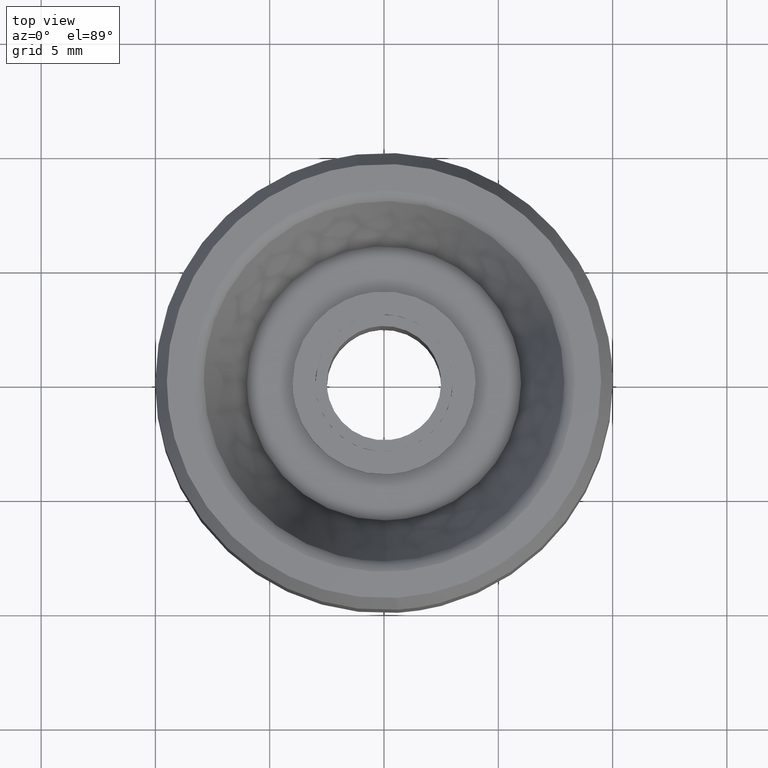
[diagram: clean part render]
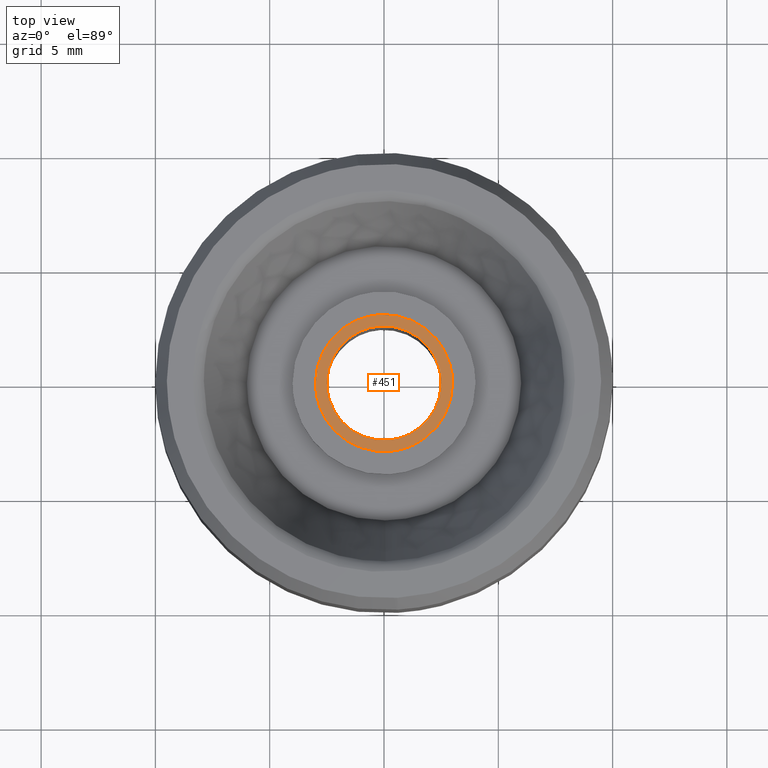
[diagram: same view with one face highlighted and labeled with its STEP entity id]
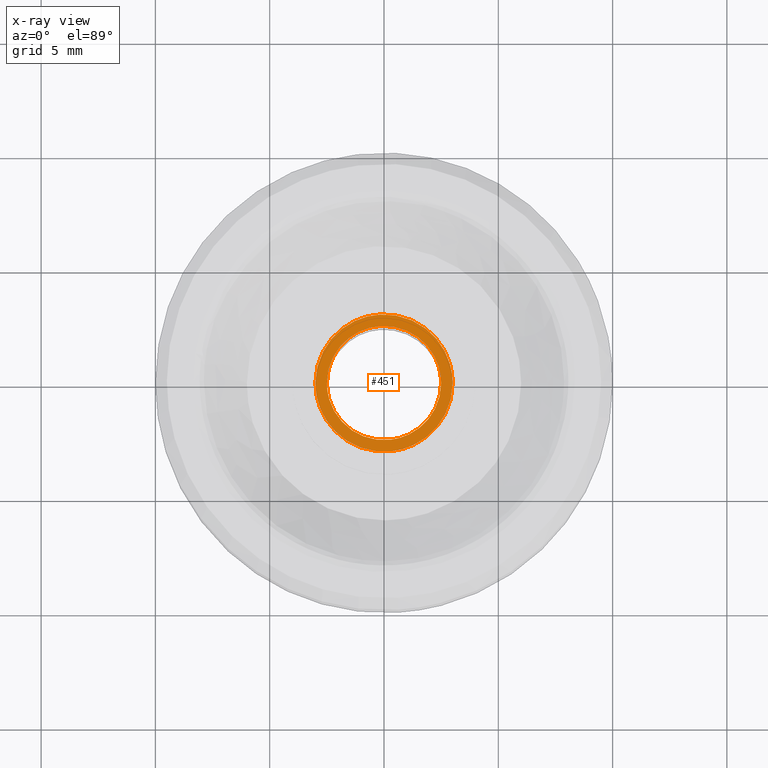
[diagram: x-ray of the same camera — body ghosted, the highlighted face saturated]
A machine part, top view. The second image highlights one B-rep face of the part: STEP entity #451.
The next image is the same camera in x-ray: the body ghosted, the highlighted face saturated — about 0% of this face is hidden behind the body in this view.
In plain terms, the highlighted face is a freeform B-spline surface patch.
Its self-contained STEP definition (entity closure, byte-faithful):
#85=CARTESIAN_POINT('',(0.354102703986130,-2.979028579089114,9.999999999999998));
#86=VERTEX_POINT('',#85);
#92=CARTESIAN_POINT('',(-3.0,0.0,10.0));
#93=VERTEX_POINT('',#92);
#94=CARTESIAN_POINT('',(0.354102703986130,-2.979028579089114,9.999999999999998));
#95=CARTESIAN_POINT('',(0.177672358971753,-2.999999999999999,10.0));
#96=CARTESIAN_POINT('',(0.0,-3.0,10.0));
#97=CARTESIAN_POINT('',(-3.0,-3.0,10.000000000000002));
#98=CARTESIAN_POINT('',(-3.0,0.0,10.0));
#106=(BOUNDED_CURVE()B_SPLINE_CURVE(2,(#94,#95,#96,#97,#98),.UNSPECIFIED.,.F.,.U.)B_SPLINE_CURVE_WITH_KNOTS((3,2,3),(0.229562473513845,0.250000000000000,0.500000000000000),.UNSPECIFIED.)CURVE()GEOMETRIC_REPRESENTATION_ITEM()RATIONAL_B_SPLINE_CURVE((0.956026754184360,0.976055948331540,1.0,0.707106781186548,1.0))REPRESENTATION_ITEM(''));
#107=EDGE_CURVE('',#86,#93,#106,.T.);
#109=CARTESIAN_POINT('',(-0.183144116693370,2.994404487125669,10.0));
#110=VERTEX_POINT('',#109);
#111=CARTESIAN_POINT('',(-3.0,0.0,10.0));
#112=CARTESIAN_POINT('',(-3.000000000000000,2.822119618859663,10.0));
#113=CARTESIAN_POINT('',(-0.183144116693370,2.994404487125669,10.000000000000002));
#121=(BOUNDED_CURVE()B_SPLINE_CURVE(2,(#111,#112,#113),.UNSPECIFIED.,.F.,.U.)B_SPLINE_CURVE_WITH_KNOTS((3,3),(0.500000000000000,0.739333048786716),.UNSPECIFIED.)CURVE()GEOMETRIC_REPRESENTATION_ITEM()RATIONAL_B_SPLINE_CURVE((1.0,0.719603891889687,0.976072227155141))REPRESENTATION_ITEM(''));
#122=EDGE_CURVE('',#93,#110,#121,.T.);
#196=CARTESIAN_POINT('',(3.0,0.0,10.0));
#197=VERTEX_POINT('',#196);
#198=CARTESIAN_POINT('',(-0.183144116693370,2.994404487125669,10.000000000000002));
#199=CARTESIAN_POINT('',(-0.091657536834589,3.000000000000000,10.0));
#200=CARTESIAN_POINT('',(0.0,3.0,10.0));
#201=CARTESIAN_POINT('',(3.0,3.0,10.000000000000002));
#202=CARTESIAN_POINT('',(3.0,0.0,10.0));
#210=(BOUNDED_CURVE()B_SPLINE_CURVE(2,(#198,#199,#200,#201,#202),.UNSPECIFIED.,.F.,.U.)B_SPLINE_CURVE_WITH_KNOTS((3,2,3),(0.739333048786716,0.750000000000000,1.0),.UNSPECIFIED.)CURVE()GEOMETRIC_REPRESENTATION_ITEM()RATIONAL_B_SPLINE_CURVE((0.976072227155141,0.987502889296861,1.0,0.707106781186548,1.0))REPRESENTATION_ITEM(''));
#211=EDGE_CURVE('',#110,#197,#210,.T.);
#213=CARTESIAN_POINT('',(3.0,0.0,10.0));
#214=CARTESIAN_POINT('',(3.000000000000000,-2.664523577825540,10.0));
#215=CARTESIAN_POINT('',(0.354102703986130,-2.979028579089114,9.999999999999998));
#223=(BOUNDED_CURVE()B_SPLINE_CURVE(2,(#213,#214,#215),.UNSPECIFIED.,.F.,.U.)B_SPLINE_CURVE_WITH_KNOTS((3,3),(0.0,0.229562473513845),.UNSPECIFIED.)CURVE()GEOMETRIC_REPRESENTATION_ITEM()RATIONAL_B_SPLINE_CURVE((1.0,0.731050832855008,0.956026754184360))REPRESENTATION_ITEM(''));
#224=EDGE_CURVE('',#197,#86,#223,.T.);
#286=CARTESIAN_POINT('',(-0.152621348861710,2.495336996053164,10.0));
#287=VERTEX_POINT('',#286);
#293=CARTESIAN_POINT('',(-2.500000000000000,0.0,10.0));
#294=VERTEX_POINT('',#293);
#295=CARTESIAN_POINT('',(-2.500000000000000,0.0,10.0));
#296=CARTESIAN_POINT('',(-2.500000000000000,2.351765167217830,9.999999999999998));
#297=CARTESIAN_POINT('',(-0.152621348861710,2.495336996053164,10.0));
#305=(BOUNDED_CURVE()B_SPLINE_CURVE(2,(#295,#296,#297),.UNSPECIFIED.,.F.,.U.)B_SPLINE_CURVE_WITH_KNOTS((3,3),(0.500000000000000,0.739332962238570),.UNSPECIFIED.)CURVE()GEOMETRIC_REPRESENTATION_ITEM()RATIONAL_B_SPLINE_CURVE((1.0,0.719603993287147,0.976072041665918))REPRESENTATION_ITEM(''));
#306=EDGE_CURVE('',#294,#287,#305,.T.);
#308=CARTESIAN_POINT('',(0.295085586660749,-2.482523815906925,10.0));
#309=VERTEX_POINT('',#308);
#310=CARTESIAN_POINT('',(0.295085586660749,-2.482523815906924,10.0));
#311=CARTESIAN_POINT('',(0.148060299148828,-2.500000000000000,10.0));
#312=CARTESIAN_POINT('',(0.0,-2.500000000000000,10.0));
#313=CARTESIAN_POINT('',(-2.500000000000000,-2.500000000000000,10.000000000000002));
#314=CARTESIAN_POINT('',(-2.500000000000000,0.0,10.0));
#322=(BOUNDED_CURVE()B_SPLINE_CURVE(2,(#310,#311,#312,#313,#314),.UNSPECIFIED.,.F.,.U.)B_SPLINE_CURVE_WITH_KNOTS((3,2,3),(0.229562473513077,0.250000000000000,0.500000000000000),.UNSPECIFIED.)CURVE()GEOMETRIC_REPRESENTATION_ITEM()RATIONAL_B_SPLINE_CURVE((0.956026754182854,0.976055948330640,1.0,0.707106781186548,1.0))REPRESENTATION_ITEM(''));
#323=EDGE_CURVE('',#309,#294,#322,.T.);
#367=CARTESIAN_POINT('',(2.500000000000000,0.0,10.0));
#368=VERTEX_POINT('',#367);
#369=CARTESIAN_POINT('',(2.500000000000000,0.0,10.0));
#370=CARTESIAN_POINT('',(2.499999999999999,-2.220436314844457,9.999999999999998));
#371=CARTESIAN_POINT('',(0.295085586660749,-2.482523815906925,10.0));
#379=(BOUNDED_CURVE()B_SPLINE_CURVE(2,(#369,#370,#371),.UNSPECIFIED.,.F.,.U.)B_SPLINE_CURVE_WITH_KNOTS((3,3),(0.0,0.229562473513077),.UNSPECIFIED.)CURVE()GEOMETRIC_REPRESENTATION_ITEM()RATIONAL_B_SPLINE_CURVE((1.0,0.731050832855907,0.956026754182855))REPRESENTATION_ITEM(''));
#380=EDGE_CURVE('',#368,#309,#379,.T.);
#382=CARTESIAN_POINT('',(-0.152621348861710,2.495336996053164,10.0));
#383=CARTESIAN_POINT('',(-0.076381908271109,2.500000000000000,10.0));
#384=CARTESIAN_POINT('',(0.0,2.500000000000000,10.0));
#385=CARTESIAN_POINT('',(2.500000000000000,2.500000000000000,10.000000000000002));
#386=CARTESIAN_POINT('',(2.500000000000000,0.0,10.0));
#394=(BOUNDED_CURVE()B_SPLINE_CURVE(2,(#382,#383,#384,#385,#386),.UNSPECIFIED.,.F.,.U.)B_SPLINE_CURVE_WITH_KNOTS((3,2,3),(0.739332962238571,0.750000000000000,1.0),.UNSPECIFIED.)CURVE()GEOMETRIC_REPRESENTATION_ITEM()RATIONAL_B_SPLINE_CURVE((0.976072041665920,0.987502787899401,1.0,0.707106781186548,1.0))REPRESENTATION_ITEM(''));
#395=EDGE_CURVE('',#287,#368,#394,.T.);
#434=CARTESIAN_POINT('',(-3.299699988370835,-3.299645593606518,10.0));
#435=CARTESIAN_POINT('',(3.299700149303376,-3.299645593606518,10.0));
#436=CARTESIAN_POINT('',(-3.299699988370835,3.299626979075955,10.0));
#437=CARTESIAN_POINT('',(3.299700149303376,3.299626979075955,10.0));
#438=B_SPLINE_SURFACE_WITH_KNOTS('',1,1,((#434,#436),(#435,#437)),.UNSPECIFIED.,.F.,.F.,.U.,(2,2),(2,2),(0.0,6.599400137674212),(0.0,6.599272572682473),.UNSPECIFIED.);
#439=ORIENTED_EDGE('',*,*,#211,.F.);
#440=ORIENTED_EDGE('',*,*,#122,.F.);
#441=ORIENTED_EDGE('',*,*,#107,.F.);
#442=ORIENTED_EDGE('',*,*,#224,.F.);
#443=EDGE_LOOP('',(#439,#440,#441,#442));
#444=FACE_OUTER_BOUND('',#443,.T.);
#445=ORIENTED_EDGE('',*,*,#306,.T.);
#446=ORIENTED_EDGE('',*,*,#395,.T.);
#447=ORIENTED_EDGE('',*,*,#380,.T.);
#448=ORIENTED_EDGE('',*,*,#323,.T.);
#449=EDGE_LOOP('',(#445,#446,#447,#448));
#450=FACE_BOUND('',#449,.T.);
#451=ADVANCED_FACE('',(#444,#450),#438,.T.);